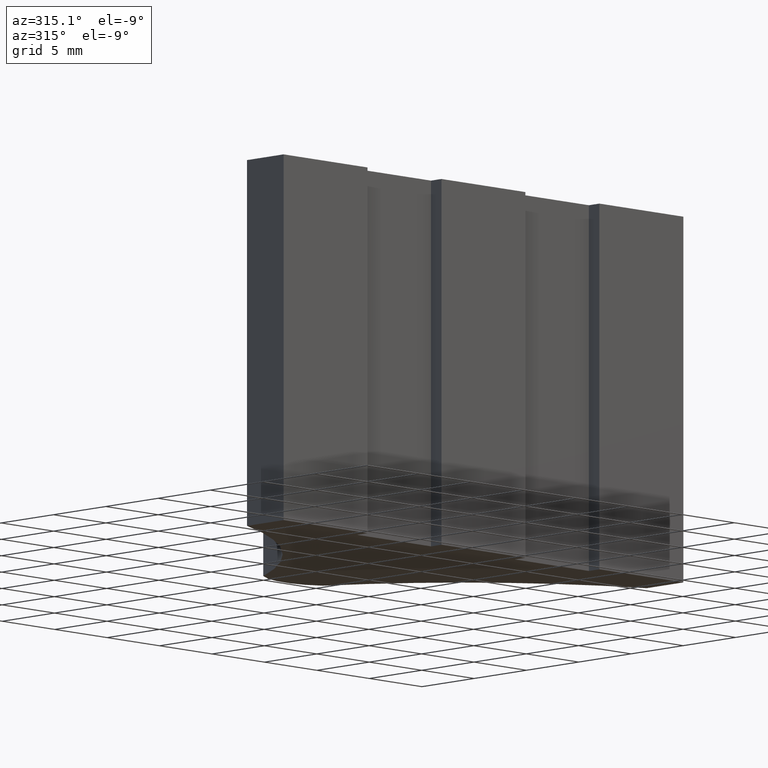
[diagram: clean part render]
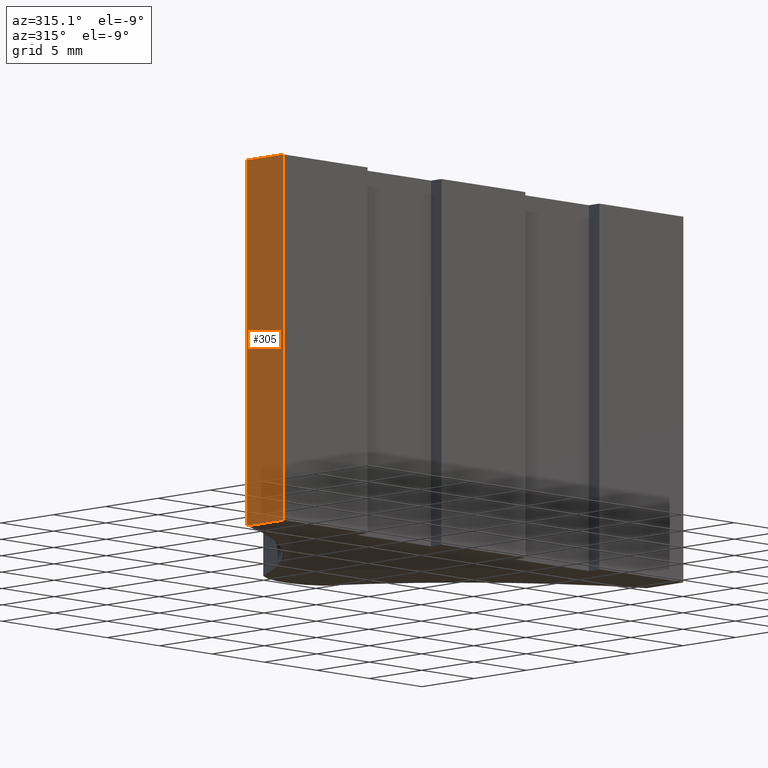
[diagram: same view with one face highlighted and labeled with its STEP entity id]
A machine part, auxiliary view. The second image highlights one B-rep face of the part: STEP entity #305.
In plain terms, the highlighted planar face has unit normal (-1, 0, 0).
Its self-contained STEP definition (entity closure, byte-faithful):
#28=FACE_OUTER_BOUND('',#44,.T.);
#44=EDGE_LOOP('',(#245,#246,#247,#248));
#67=LINE('',#463,#103);
#84=LINE('',#502,#120);
#85=LINE('',#505,#121);
#86=LINE('',#506,#122);
#103=VECTOR('',#371,10.);
#120=VECTOR('',#410,10.);
#121=VECTOR('',#413,10.);
#122=VECTOR('',#414,10.);
#139=VERTEX_POINT('',#460);
#140=VERTEX_POINT('',#462);
#151=VERTEX_POINT('',#500);
#152=VERTEX_POINT('',#504);
#167=EDGE_CURVE('',#140,#139,#67,.T.);
#187=EDGE_CURVE('',#151,#139,#84,.T.);
#188=EDGE_CURVE('',#151,#152,#85,.T.);
#189=EDGE_CURVE('',#152,#140,#86,.T.);
#245=ORIENTED_EDGE('',*,*,#188,.T.);
#246=ORIENTED_EDGE('',*,*,#189,.T.);
#247=ORIENTED_EDGE('',*,*,#167,.T.);
#248=ORIENTED_EDGE('',*,*,#187,.F.);
#292=PLANE('',#347);
#305=ADVANCED_FACE('',(#28),#292,.T.);
#347=AXIS2_PLACEMENT_3D('',#503,#411,#412);
#371=DIRECTION('',(0.,-1.,0.));
#410=DIRECTION('',(0.,0.,-1.));
#411=DIRECTION('center_axis',(-1.,0.,0.));
#412=DIRECTION('ref_axis',(0.,0.,1.));
#413=DIRECTION('',(0.,1.,0.));
#414=DIRECTION('',(0.,0.,-1.));
#460=CARTESIAN_POINT('',(-19.05,-1.,-12.5));
#462=CARTESIAN_POINT('',(-19.05,2.5,-12.5));
#463=CARTESIAN_POINT('',(-19.05,-1.,-12.5));
#500=CARTESIAN_POINT('',(-19.05,-1.,12.5));
#502=CARTESIAN_POINT('',(-19.05,-1.,0.));
#503=CARTESIAN_POINT('Origin',(-19.05,-1.,0.));
#504=CARTESIAN_POINT('',(-19.05,2.5,12.5));
#505=CARTESIAN_POINT('',(-19.05,-1.,12.5));
#506=CARTESIAN_POINT('',(-19.05,2.5,0.));